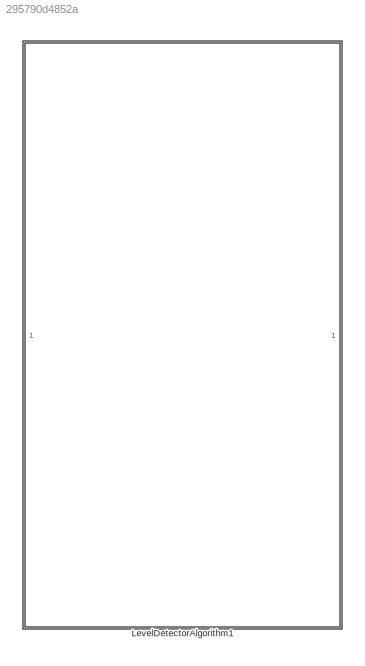
MODEL slx_295790d4852a
KIND library
CONFIG AbsTol = auto
CONFIG EnableMultiTasking = off
CONFIG FixedStep = auto
CONFIG MaxStep = auto
CONFIG MinStep = auto
CONFIG RelTol = 1e-3
CONFIG SampleTimeConstraint = Unconstrained
CONFIG SolverName = VariableStepAuto
CONFIG StartTime = 0.0
CONFIG StopTime = 10.0
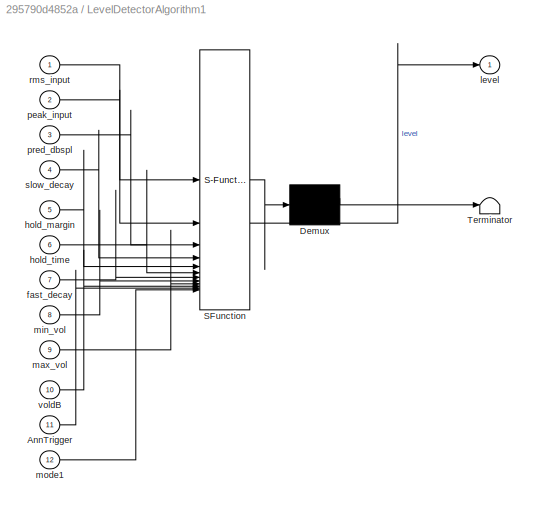
BLOCK [SubSystem] LevelDetectorAlgorithm1
  ErrorFcn = Stateflow.Translate.translate
  PermitHierarchicalResolution = ExplicitOnly
  SFBlockType = MATLAB Function
  TreatAsAtomicUnit = on
BLOCK [Demux] LevelDetectorAlgorithm1/ Demux 
  Outputs = 1
BLOCK [S-Function] LevelDetectorAlgorithm1/ SFunction 
  EnableBusSupport = off
  FunctionName = sf_sfun
  Parameters = Fd
  PortCounts = [12 2]
  SFcnIsStateOwnerBlock = off
  SFunctionDeploymentMode = off
  Tag = Stateflow S-Function 18
BLOCK [Terminator] LevelDetectorAlgorithm1/ Terminator 
BLOCK [Inport] LevelDetectorAlgorithm1/AnnTrigger
  Port = 11
BLOCK [Inport] LevelDetectorAlgorithm1/fast_decay
  Port = 7
BLOCK [Inport] LevelDetectorAlgorithm1/hold_margin
  Port = 5
BLOCK [Inport] LevelDetectorAlgorithm1/hold_time
  Port = 6
BLOCK [Outport] LevelDetectorAlgorithm1/level
  VectorParamsAs1DForOutWhenUnconnected = off
BLOCK [Inport] LevelDetectorAlgorithm1/max_vol
  Port = 9
BLOCK [Inport] LevelDetectorAlgorithm1/min_vol
  Port = 8
BLOCK [Inport] LevelDetectorAlgorithm1/mode1
  Port = 12
BLOCK [Inport] LevelDetectorAlgorithm1/peak_input
  Port = 2
BLOCK [Inport] LevelDetectorAlgorithm1/pred_dbspl
  Port = 3
BLOCK [Inport] LevelDetectorAlgorithm1/rms_input
BLOCK [Inport] LevelDetectorAlgorithm1/slow_decay
  Port = 4
BLOCK [Inport] LevelDetectorAlgorithm1/voldB
  Port = 10
CHART LevelDetectorAlgorithm1 states=1 transitions=1
  STATE_LABEL 'eML_blk_kernel()'
  STATE_LABEL 'SCRIPT:\nfunction level  = levelDetector(rms_input, peak_input, pred_dbspl, ...\n    slow_decay, hold_margin, hold_time, fast_decay, min_vol, max_vol, ...\n    voldB, Fd, AnnTrigger, mode1)\n\n% States\npersistent holdFlag;\npersistent holdState;\npersistent env;\n\nRMS_mode1 = single(1.0);\nANN_TRIGGER_THRESHOLD = single(0.5);\n\nnumberOfDetectors = 1;\nSUPER_FAST_DECAY_MULTIPLIER =  single(3.0);\n\nif (isempty(...<+2320ch>'
CHART  states=0 transitions=0
